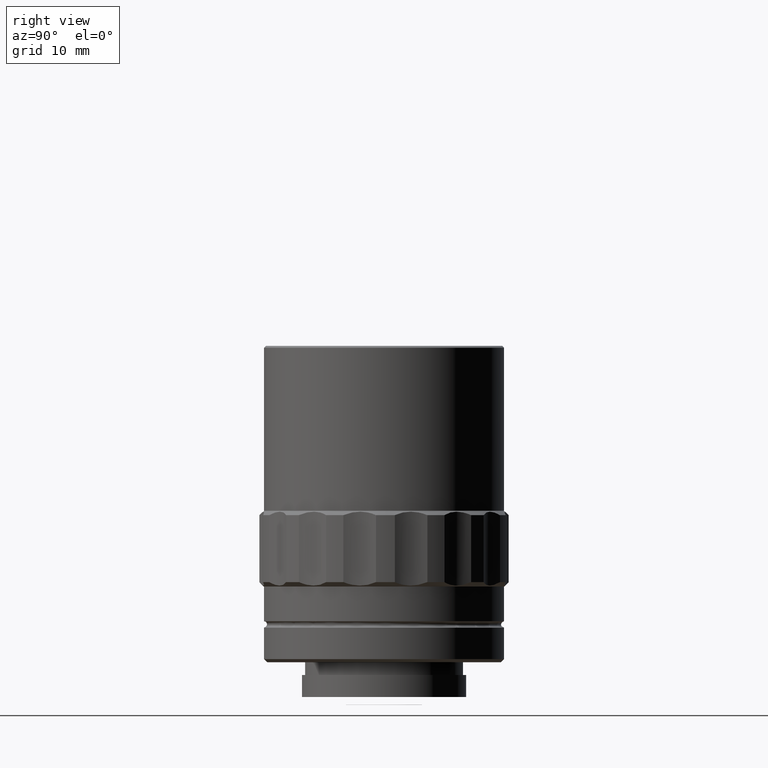
[diagram: clean part render]
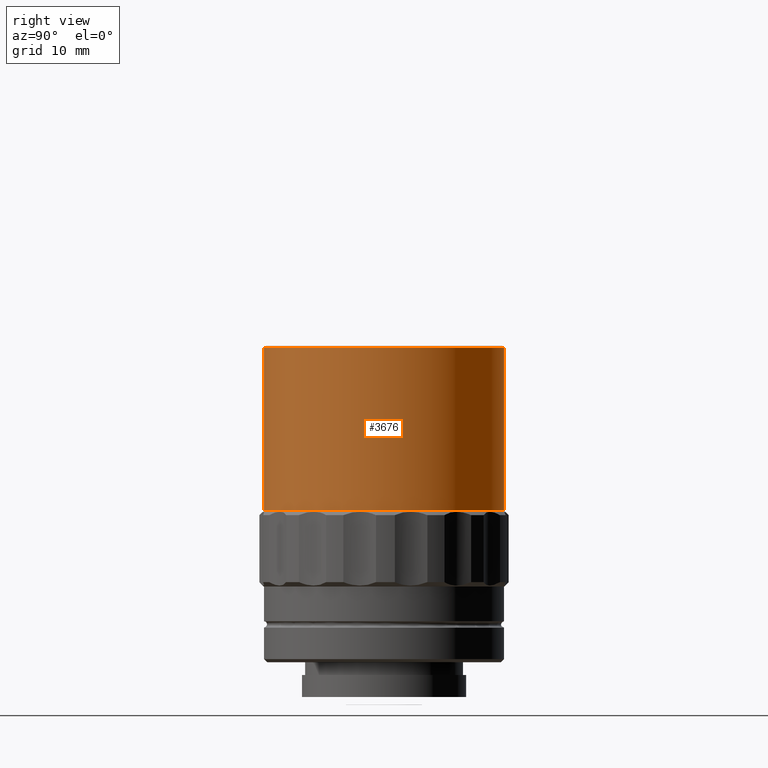
[diagram: same view with one face highlighted and labeled with its STEP entity id]
A machine part, right view. The second image highlights one B-rep face of the part: STEP entity #3676.
In plain terms, the highlighted cylindrical surface (bore or boss wall) has radius 19 mm, axis along (-0, -0, -1).
Its self-contained STEP definition (entity closure, byte-faithful):
#240 = CIRCLE ( 'NONE', #1166, 18.99999999999999645 ) ;
#419 = EDGE_LOOP ( 'NONE', ( #1663 ) ) ;
#421 = VERTEX_POINT ( 'NONE', #1425 ) ;
#598 = DIRECTION ( 'NONE',  ( -0.6590015572906243735, -0.7521415740992728471, 0.000000000000000000 ) ) ;
#625 = CARTESIAN_POINT ( 'NONE',  ( -12.52102958852185921, -14.29068990788618088, 54.49000000000000199 ) ) ;
#841 = CYLINDRICAL_SURFACE ( 'NONE', #3673, 18.99999999999999645 ) ;
#956 = VERTEX_POINT ( 'NONE', #625 ) ;
#1028 = DIRECTION ( 'NONE',  ( -0.6590015572906243735, -0.7521415740992728471, 0.000000000000000000 ) ) ;
#1166 = AXIS2_PLACEMENT_3D ( 'NONE', #4284, #2400, #1028 ) ;
#1374 = ORIENTED_EDGE ( 'NONE', *, *, #4139, .T. ) ;
#1425 = CARTESIAN_POINT ( 'NONE',  ( -12.52102958852185921, -14.29068990788618088, 28.68999999999999417 ) ) ;
#1492 = CARTESIAN_POINT ( 'NONE',  ( -3.640455481893212845E-16, -4.470751064159933471E-16, -28.88692307692306827 ) ) ;
#1663 = ORIENTED_EDGE ( 'NONE', *, *, #3963, .T. ) ;
#2400 = DIRECTION ( 'NONE',  ( -2.775557561562901828E-17, -1.387778780781447833E-17, -1.000000000000000000 ) ) ;
#2430 = CIRCLE ( 'NONE', #3270, 18.99999999999999645 ) ;
#2550 = DIRECTION ( 'NONE',  ( 2.775557561562901828E-17, 1.387778780781447833E-17, 1.000000000000000000 ) ) ;
#2830 = DIRECTION ( 'NONE',  ( -0.6590015572906243735, -0.7521415740992728471, 0.000000000000000000 ) ) ;
#2857 = FACE_OUTER_BOUND ( 'NONE', #419, .T. ) ;
#2909 = CARTESIAN_POINT ( 'NONE',  ( 1.234035093987473290E-15, 3.519652146724018943E-16, 28.68999999999999417 ) ) ;
#3077 = DIRECTION ( 'NONE',  ( -2.775557561562901828E-17, -1.387778780781447833E-17, -1.000000000000000000 ) ) ;
#3270 = AXIS2_PLACEMENT_3D ( 'NONE', #2909, #2550, #598 ) ;
#3368 = EDGE_LOOP ( 'NONE', ( #1374 ) ) ;
#3531 = FACE_OUTER_BOUND ( 'NONE', #3368, .T. ) ;
#3673 = AXIS2_PLACEMENT_3D ( 'NONE', #1492, #3077, #2830 ) ;
#3676 = ADVANCED_FACE ( 'NONE', ( #3531, #2857 ), #841, .T. ) ;
#3963 = EDGE_CURVE ( 'NONE', #956, #956, #240, .T. ) ;
#4139 = EDGE_CURVE ( 'NONE', #421, #421, #2430, .T. ) ;
#4284 = CARTESIAN_POINT ( 'NONE',  ( 1.950128944870701152E-15, 7.100121401140152335E-16, 54.49000000000000199 ) ) ;